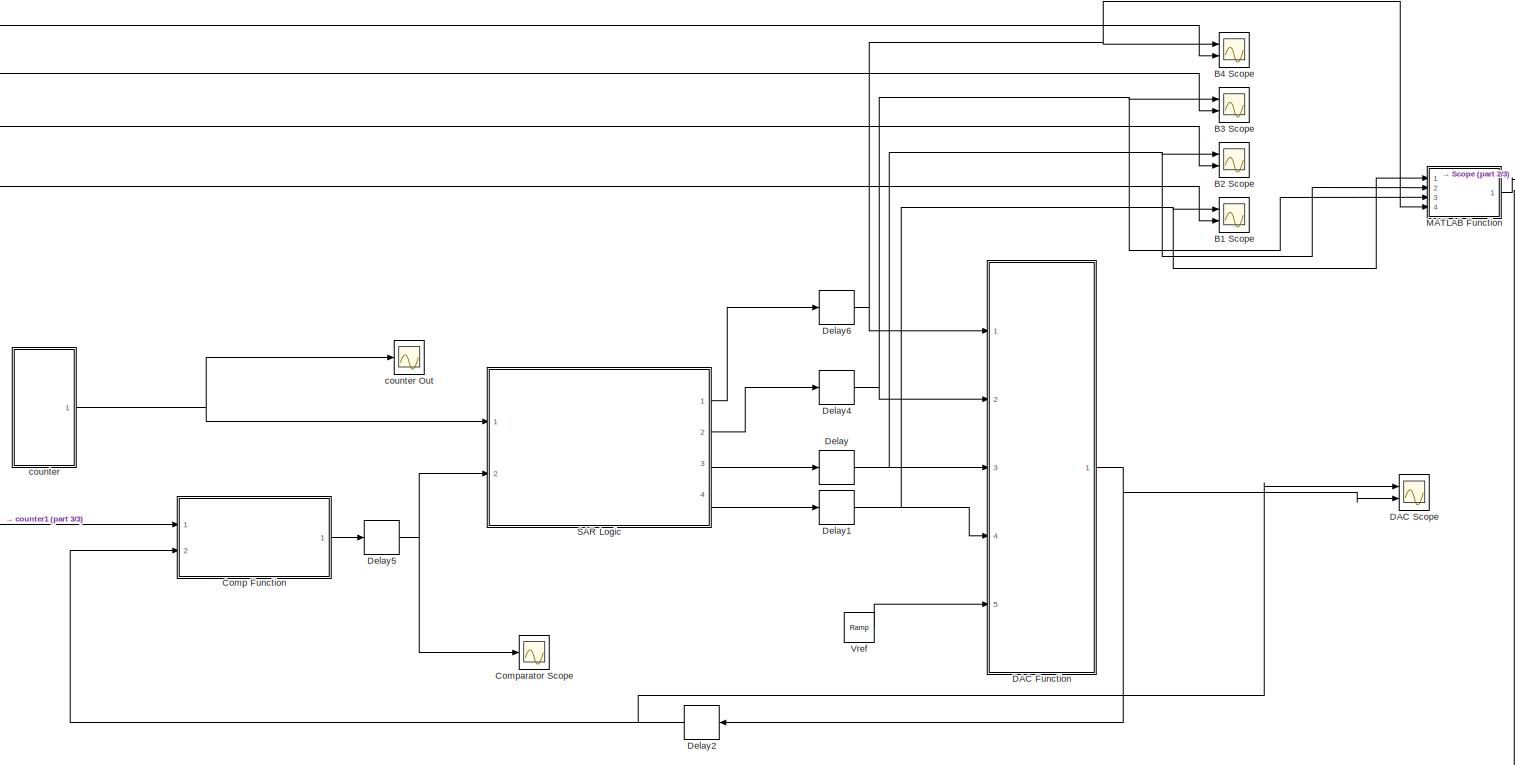
[diagram: root canvas - part 1/3, most of the canvas]
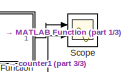
[diagram: root canvas - part 2/3, top right region]
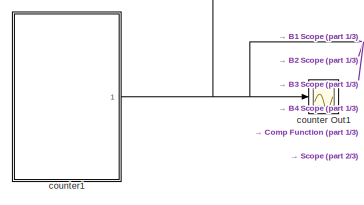
[diagram: root canvas - part 3/3, bottom left region]
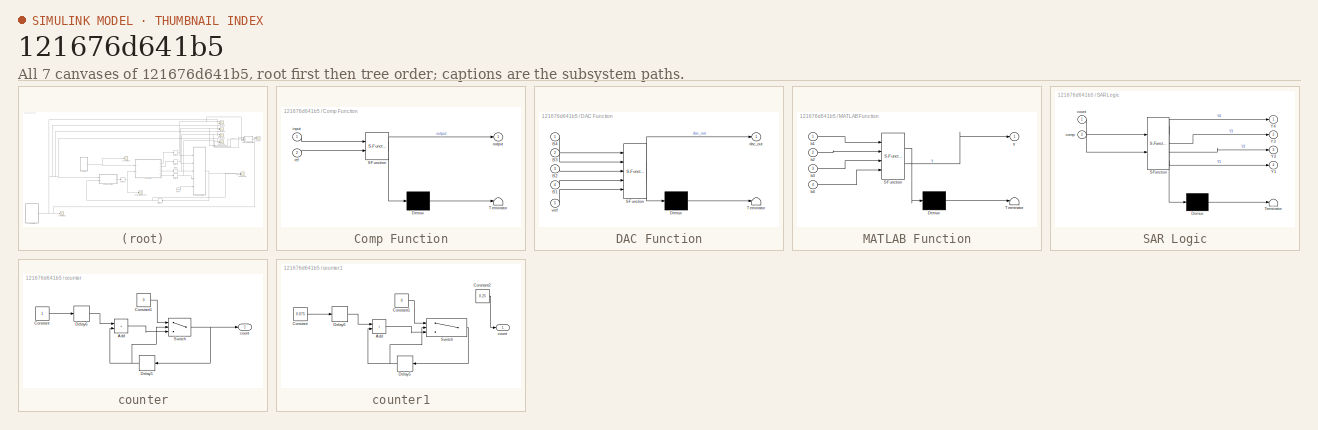
[diagram: thumbnail index - all 7 canvases of the model, root first then tree order]
MODEL slx_121676d641b5
KIND model
CONFIG AbsTol = auto
CONFIG EnableMultiTasking = off
CONFIG FixedStep = 1
CONFIG MaxStep = auto
CONFIG MinStep = auto
CONFIG RelTol = 1e-3
CONFIG SampleTimeConstraint = Unconstrained
CONFIG SolverName = FixedStepAuto
CONFIG StartTime = 0.0
CONFIG StopTime = 100
BLOCK [Scope] B1 Scope
  Floating = off
  NumInputPorts = 2
  Ports = [2]
  ScopeSpecificationString = Simulink.scopes.TimeScopeBlockCfg('CurrentConfiguration', extmgr.ConfigurationSet(extmgr.Configuration('Core','General UI',true),extmgr.Configuration('Core','Source UI',true),extmgr.Configuration('Sources','WiredSimulink',true,'DataLoggingVariableName','ScopeData2'),extmgr.Configuration('Visuals','Time Domain',true,'SerializedDisplays',{struct('MinYLimReal','-5.22016','MaxYLimReal','6.49253','YLab...<+1424ch>
BLOCK [Scope] B2 Scope
  Floating = off
  NumInputPorts = 2
  Ports = [2]
  ScopeSpecificationString = Simulink.scopes.TimeScopeBlockCfg('CurrentConfiguration', extmgr.ConfigurationSet(extmgr.Configuration('Core','General UI',true),extmgr.Configuration('Core','Source UI',true),extmgr.Configuration('Sources','WiredSimulink',true,'DataLoggingVariableName','ScopeData1'),extmgr.Configuration('Visuals','Time Domain',true,'SerializedDisplays',{struct('MinYLimReal','-0.125','MaxYLimReal','1.2','YLabelReal...<+1403ch>
BLOCK [Scope] B3 Scope
  Floating = off
  NumInputPorts = 2
  Ports = [2]
  ScopeSpecificationString = Simulink.scopes.TimeScopeBlockCfg('CurrentConfiguration', extmgr.ConfigurationSet(extmgr.Configuration('Core','General UI',true),extmgr.Configuration('Core','Source UI',true),extmgr.Configuration('Sources','WiredSimulink',true,'DataLoggingVariableName','ScopeData1'),extmgr.Configuration('Visuals','Time Domain',true,'SerializedDisplays',{struct('MinYLimReal','-0.125','MaxYLimReal','1.2','YLabelReal...<+1404ch>
BLOCK [Scope] B4 Scope
  Floating = off
  NumInputPorts = 2
  Ports = [2]
  ScopeSpecificationString = Simulink.scopes.TimeScopeBlockCfg('CurrentConfiguration', extmgr.ConfigurationSet(extmgr.Configuration('Core','General UI',true),extmgr.Configuration('Core','Source UI',true),extmgr.Configuration('Sources','WiredSimulink',true,'DataLoggingVariableName','ScopeData2'),extmgr.Configuration('Visuals','Time Domain',true,'SerializedDisplays',{struct('MinYLimReal','-0.125','MaxYLimReal','1.2','YLabelReal...<+1404ch>
BLOCK [SubSystem] Comp Function
  ErrorFcn = Stateflow.Translate.translate
  PermitHierarchicalResolution = ExplicitOnly
  Ports = [2, 1]
  RequestExecContextInheritance = off
  SFBlockType = MATLAB Function
  TreatAsAtomicUnit = on
BLOCK [Demux] Comp Function/ Demux 
  Outputs = 1
  Ports = [1, 1]
BLOCK [S-Function] Comp Function/ SFunction 
  EnableBusSupport = on
  FunctionName = sf_sfun
  PortCounts = [2 2]
  Ports = [2, 2]
  SFcnIsStateOwnerBlock = off
  SFunctionDeploymentMode = off
  Tag = Stateflow S-Function 1
BLOCK [Terminator] Comp Function/ Terminator 
BLOCK [Inport] Comp Function/input
BLOCK [Outport] Comp Function/output
BLOCK [Inport] Comp Function/ref
  Port = 2
BLOCK [Scope] Comparator Scope
  Floating = off
  NumInputPorts = 1
  Ports = [1]
  ScopeSpecificationString = Simulink.scopes.TimeScopeBlockCfg('CurrentConfiguration', extmgr.ConfigurationSet(extmgr.Configuration('Core','General UI',true),extmgr.Configuration('Core','Source UI',true),extmgr.Configuration('Sources','WiredSimulink',true,'DataLoggingVariableName','ScopeData4'),extmgr.Configuration('Visuals','Time Domain',true,'SerializedDisplays',{struct('MinYLimReal','-0.125','MaxYLimReal','1.125','YLabelRe...<+1406ch>
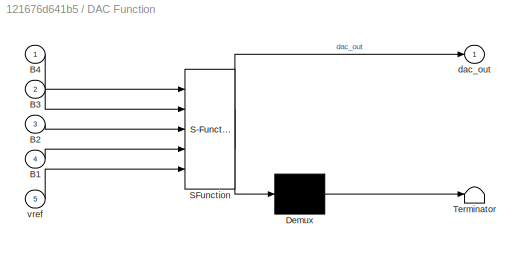
BLOCK [SubSystem] DAC Function
  ErrorFcn = Stateflow.Translate.translate
  PermitHierarchicalResolution = ExplicitOnly
  Ports = [5, 1]
  RequestExecContextInheritance = off
  SFBlockType = MATLAB Function
  TreatAsAtomicUnit = on
BLOCK [Demux] DAC Function/ Demux 
  Outputs = 1
  Ports = [1, 1]
BLOCK [S-Function] DAC Function/ SFunction 
  EnableBusSupport = on
  FunctionName = sf_sfun
  PortCounts = [5 2]
  Ports = [5, 2]
  SFcnIsStateOwnerBlock = off
  SFunctionDeploymentMode = off
  Tag = Stateflow S-Function 4
BLOCK [Terminator] DAC Function/ Terminator 
BLOCK [Inport] DAC Function/B1
  Port = 4
BLOCK [Inport] DAC Function/B2
  Port = 3
BLOCK [Inport] DAC Function/B3
  Port = 2
BLOCK [Inport] DAC Function/B4
BLOCK [Outport] DAC Function/dac_out
BLOCK [Inport] DAC Function/vref
  Port = 5
BLOCK [Scope] DAC Scope
  Floating = off
  NumInputPorts = 2
  Ports = [2]
  ScopeSpecificationString = Simulink.scopes.TimeScopeBlockCfg('CurrentConfiguration', extmgr.ConfigurationSet(extmgr.Configuration('Core','General UI',true),extmgr.Configuration('Core','Source UI',true),extmgr.Configuration('Sources','WiredSimulink',true,'DataLoggingVariableName','ScopeData1'),extmgr.Configuration('Visuals','Time Domain',true,'SerializedDisplays',{struct('MinYLimReal','-0.09375','MaxYLimReal','0.84375','YLab...<+2319ch>
BLOCK [Delay] Delay
  DelayLength = 1
  InitialCondition = 0
  InputPortMap = u0
  Ports = [1, 1]
BLOCK [Delay] Delay1
  DelayLength = 1
  InitialCondition = 0
  InputPortMap = u0
  Ports = [1, 1]
BLOCK [Delay] Delay2
  DelayLength = 1
  InitialCondition = 0
  InputPortMap = u0
  Ports = [1, 1]
BLOCK [Delay] Delay4
  DelayLength = 1
  InitialCondition = 0
  InputPortMap = u0
  Ports = [1, 1]
BLOCK [Delay] Delay5
  DelayLength = 1
  InitialCondition = 0
  InputPortMap = u0
  Ports = [1, 1]
BLOCK [Delay] Delay6
  DelayLength = 1
  InitialCondition = 0
  InputPortMap = u0
  Ports = [1, 1]
BLOCK [SubSystem] MATLAB Function
  ErrorFcn = Stateflow.Translate.translate
  PermitHierarchicalResolution = ExplicitOnly
  Ports = [4, 1]
  RequestExecContextInheritance = off
  SFBlockType = MATLAB Function
  TreatAsAtomicUnit = on
BLOCK [Demux] MATLAB Function/ Demux 
  Outputs = 1
  Ports = [1, 1]
BLOCK [S-Function] MATLAB Function/ SFunction 
  EnableBusSupport = on
  FunctionName = sf_sfun
  PortCounts = [4 2]
  Ports = [4, 2]
  SFcnIsStateOwnerBlock = off
  SFunctionDeploymentMode = off
  Tag = Stateflow S-Function 3
BLOCK [Terminator] MATLAB Function/ Terminator 
BLOCK [Inport] MATLAB Function/b1
BLOCK [Inport] MATLAB Function/b2
  Port = 2
BLOCK [Inport] MATLAB Function/b3
  Port = 3
BLOCK [Inport] MATLAB Function/b4
  Port = 4
BLOCK [Outport] MATLAB Function/y
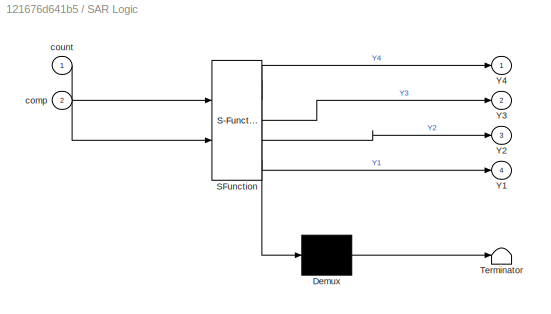
BLOCK [SubSystem] SAR Logic
  ErrorFcn = Stateflow.Translate.translate
  PermitHierarchicalResolution = ExplicitOnly
  Ports = [2, 4]
  RequestExecContextInheritance = off
  SFBlockType = MATLAB Function
  TreatAsAtomicUnit = on
BLOCK [Demux] SAR Logic/ Demux 
  Outputs = 1
  Ports = [1, 1]
BLOCK [S-Function] SAR Logic/ SFunction 
  EnableBusSupport = on
  FunctionName = sf_sfun
  PortCounts = [2 5]
  Ports = [2, 5]
  SFcnIsStateOwnerBlock = off
  SFunctionDeploymentMode = off
  Tag = Stateflow S-Function 2
BLOCK [Terminator] SAR Logic/ Terminator 
BLOCK [Outport] SAR Logic/Y1
  Port = 4
BLOCK [Outport] SAR Logic/Y2
  Port = 3
BLOCK [Outport] SAR Logic/Y3
  Port = 2
BLOCK [Outport] SAR Logic/Y4
BLOCK [Inport] SAR Logic/comp
  Port = 2
BLOCK [Inport] SAR Logic/count
BLOCK [Scope] Scope
  Floating = off
  NumInputPorts = 2
  Ports = [2]
  ScopeSpecificationString = Simulink.scopes.TimeScopeBlockCfg('CurrentConfiguration', extmgr.ConfigurationSet(extmgr.Configuration('Core','General UI',true),extmgr.Configuration('Core','Source UI',true),extmgr.Configuration('Sources','WiredSimulink',true,'DataLoggingVariableName','ScopeData1'),extmgr.Configuration('Visuals','Time Domain',true,'SerializedDisplays',{struct('MinYLimReal','-1.5','MaxYLimReal','13.5','YLabelReal'...<+2303ch>
BLOCK [Reference] Vref  REF=simulink/Sources/Ramp
  Ports = [0, 1]
  SourceBlock = simulink/Sources/Ramp
  SourceProductBaseCode = SL
  SourceType = Ramp
BLOCK [SubSystem] counter
  Ports = [0, 1]
  RequestExecContextInheritance = off
BLOCK [Scope] counter Out
  Floating = off
  NumInputPorts = 1
  Ports = [1]
  ScopeSpecificationString = Simulink.scopes.TimeScopeBlockCfg('CurrentConfiguration', extmgr.ConfigurationSet(extmgr.Configuration('Core','General UI',true),extmgr.Configuration('Core','Source UI',true),extmgr.Configuration('Sources','WiredSimulink',true,'DataLoggingVariableName','ScopeData1'),extmgr.Configuration('Visuals','Time Domain',true,'SerializedDisplays',{struct('MinYLimReal','-1.75','MaxYLimReal','15.75','YLabelRea...<+1381ch>
BLOCK [Scope] counter Out1
  Floating = off
  NumInputPorts = 1
  Ports = [1]
  ScopeSpecificationString = Simulink.scopes.TimeScopeBlockCfg('CurrentConfiguration', extmgr.ConfigurationSet(extmgr.Configuration('Core','General UI',true),extmgr.Configuration('Core','Source UI',true),extmgr.Configuration('Sources','WiredSimulink',true,'DataLoggingVariableName','ScopeData1'),extmgr.Configuration('Visuals','Time Domain',true,'TimeAxisLabels','All','SerializedDisplays',{struct('MinYLimReal','-0.15','MaxYLimR...<+1777ch>
BLOCK [Sum] counter/Add
  IconShape = rectangular
  Ports = [2, 1]
BLOCK [Constant] counter/Constant
BLOCK [Constant] counter/Constant1
  Value = 0
BLOCK [Delay] counter/Delay5
  DelayLength = 1
  InitialCondition = 0
  InputPortMap = u0
  Ports = [1, 1]
BLOCK [Delay] counter/Delay6
  DelayLength = 1
  InitialCondition = 0
  InputPortMap = u0
  Ports = [1, 1]
BLOCK [Switch] counter/Switch
  InputSameDT = off
  SaturateOnIntegerOverflow = off
  Threshold = 14
BLOCK [Outport] counter/count
BLOCK [SubSystem] counter1
  Ports = [0, 1]
  RequestExecContextInheritance = off
BLOCK [Sum] counter1/Add
  IconShape = rectangular
  Ports = [2, 1]
BLOCK [Constant] counter1/Constant
  Value = 0.075
BLOCK [Constant] counter1/Constant1
  Value = 0
BLOCK [Constant] counter1/Constant2
  Value = 0.25
BLOCK [Delay] counter1/Delay5
  DelayLength = 12
  InitialCondition = 0
  InputPortMap = u0
  Ports = [1, 1]
BLOCK [Delay] counter1/Delay6
  DelayLength = 12
  InitialCondition = 0
  InputPortMap = u0
  Ports = [1, 1]
BLOCK [Switch] counter1/Switch
  InputSameDT = off
  SaturateOnIntegerOverflow = off
  Threshold = 1.125
BLOCK [Outport] counter1/count
LINE Comp Function:1 -> Delay5:1
NET DAC Function:1 -> DAC Scope:2, Delay2:1
NET Delay1:1 -> B1 Scope:1, DAC Function:4, MATLAB Function:1
NET Delay2:1 -> Comp Function:2, DAC Scope:1
NET Delay4:1 -> B3 Scope:1, DAC Function:2, MATLAB Function:3
NET Delay5:1 -> Comparator Scope:1, SAR Logic:2
NET Delay6:1 -> B4 Scope:1, DAC Function:1, MATLAB Function:4
NET Delay:1 -> B2 Scope:1, DAC Function:3, MATLAB Function:2
LINE MATLAB Function:1 -> Scope:1
LINE SAR Logic:1 -> Delay6:1
LINE SAR Logic:2 -> Delay4:1
LINE SAR Logic:3 -> Delay:1
LINE SAR Logic:4 -> Delay1:1
LINE Vref:1 -> DAC Function:5
LINE counter/Add:1 -> counter/Switch:3
LINE counter/Constant1:1 -> counter/Switch:1
LINE counter/Constant:1 -> counter/Delay6:1
NET counter/Delay5:1 -> counter/Add:2, counter/Switch:2
LINE counter/Delay6:1 -> counter/Add:1
NET counter/Switch:1 -> counter/Delay5:1, counter/count:1
LINE counter1/Add:1 -> counter1/Switch:3
LINE counter1/Constant1:1 -> counter1/Switch:1
LINE counter1/Constant2:1 -> counter1/count:1
LINE counter1/Constant:1 -> counter1/Delay6:1
NET counter1/Delay5:1 -> counter1/Add:2, counter1/Switch:2
LINE counter1/Delay6:1 -> counter1/Add:1
LINE counter1/Switch:1 -> counter1/Delay5:1
NET counter1:1 -> B1 Scope:2, B2 Scope:2, B3 Scope:2, B4 Scope:2, Comp Function:1, Scope:2, counter Out1:1
NET counter:1 -> SAR Logic:1, counter Out:1
note: NET lines group one-source signal fan-out (src -> all destinations, sorted); 1:1 wires keep LINE
CHART Comp Function states=1 transitions=1
  STATE_LABEL 'eML_blk_kernel()'
  STATE_LABEL 'SCRIPT:\nfunction output = comparator(input, ref)\n\n\n    if input >= ref\n        output = 1;\n    else \n        output = 0;\n    end\n\n\n'
CHART SAR Logic states=1 transitions=1
  STATE_LABEL 'eML_blk_kernel()'
  STATE_LABEL 'SCRIPT:\nfunction [Y4,Y3,Y2,Y1] = logic(count, comp)\n\npersistent B3;\npersistent B4;\npersistent B2;\npersistent B1;\n\nif isempty(B4) && isempty(B3) && isempty(B2) && isempty(B1)\n    B4 = 0b1;\n    B3 = 0b0;\n    B2 = 0b0;\n    B1 = 0b0;\nend\n\n%%%%%%%%%%%%%%%%%%%%%%%%%%%%%\n% if count == 3\n%     if comp == 0b0\n%         B2 = 0b0;\n%         B1 = 0b1;\n%     else\n%         B2 = 0b1;\n%         B1 = 0b1;\n%     e...<+3213ch>'
CHART MATLAB Function states=1 transitions=1
  STATE_LABEL 'eML_blk_kernel()'
  STATE_LABEL 'SCRIPT:\nfunction y = fcn(b1,b2,b3,b4)\ny = b1*(2^0) + b2*(2^1) + b3*(2^2) + b4*(2^3);\n\n'
CHART DAC Function states=1 transitions=1
  STATE_LABEL 'eML_blk_kernel()'
  STATE_LABEL 'SCRIPT:\nfunction dac_out = DAC(B4,B3,B2,B1,vref)\n\n%binary representaion 0(b)MSB------LSB\n%bin = dac_input;\n%vec = bitget(bin, 1:1:8)\n\n\ndac_out = vref * ((double(B4)/double(2^1)) + (double(B3)/double(2^2)) + (double(B2)/double(2^3)) + (double(B1)/double(2^4)));\n'
CHART  states=0 transitions=0
CHART  states=0 transitions=0
CHART  states=0 transitions=0
CHART  states=0 transitions=0
